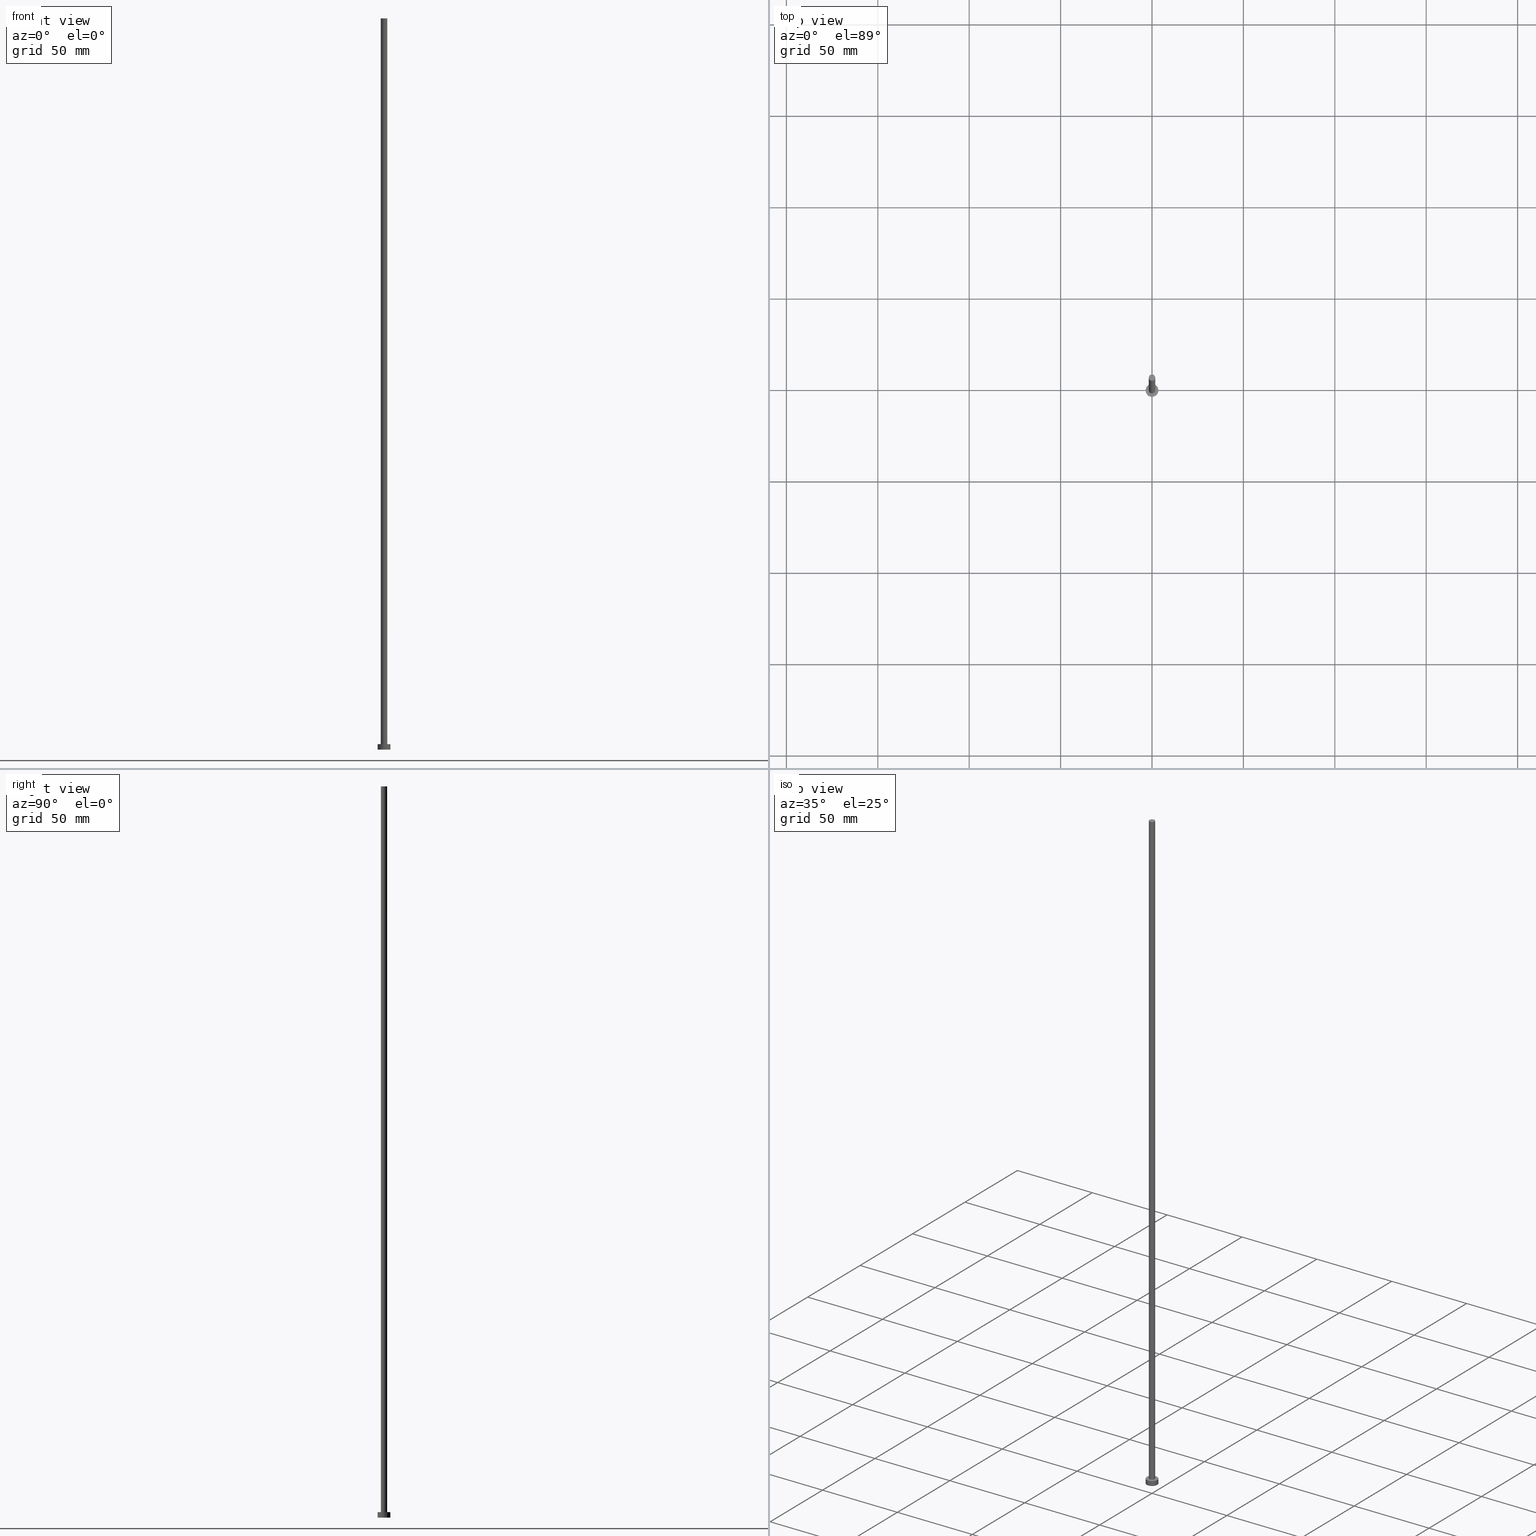
[diagram: canonical four-view strip — front | top / right | iso, engineering-drawing reading convention]
A machine part, canonical four-view strip (front | top / right | iso — engineering-drawing reading convention). The complete STEP part file that produces these views, byte-faithful:
ISO-10303-21;
HEADER;
FILE_DESCRIPTION (( 'STEP AP203' ),
    '1' );
FILE_NAME ('dde2.STEP',
    '2023-02-13T16:22:52',
    ( '' ),
    ( '' ),
    'SwSTEP 2.0',
    'SolidWorks 2019',
    '' );
FILE_SCHEMA (( 'CONFIG_CONTROL_DESIGN' ));
ENDSEC;

DATA;
#1 = DATE_AND_TIME ( #176, #214 ) ;
#2 = CC_DESIGN_PERSON_AND_ORGANIZATION_ASSIGNMENT ( #243, #244, ( #119 ) ) ;
#3 = ADVANCED_FACE ( 'NONE', ( #35, #211 ), #49, .T. ) ;
#4 = DIRECTION ( 'NONE',  ( 1.000000000000000000, 0.000000000000000000, 0.000000000000000000 ) ) ;
#5 = CARTESIAN_POINT ( 'NONE',  ( 0.000000000000000000, 0.000000000000000000, 0.000000000000000000 ) ) ;
#6 = DIRECTION ( 'NONE',  ( 0.000000000000000000, 0.000000000000000000, 1.000000000000000000 ) ) ;
#7 = CIRCLE ( 'NONE', #217, 1.750000000000000000 ) ;
#8 = APPROVAL_DATE_TIME ( #62, #29 ) ;
#9 = EDGE_LOOP ( 'NONE', ( #204, #183 ) ) ;
#10 = PERSON_AND_ORGANIZATION_ROLE ( 'classification_officer' ) ;
#11 = VERTEX_POINT ( 'NONE', #88 ) ;
#12 = ORIENTED_EDGE ( 'NONE', *, *, #55, .T. ) ;
#13 = ORIENTED_EDGE ( 'NONE', *, *, #55, .F. ) ;
#14 = ADVANCED_FACE ( 'NONE', ( #206 ), #233, .T. ) ;
#15 = DIRECTION ( 'NONE',  ( -1.000000000000000000, 0.000000000000000000, 0.000000000000000000 ) ) ;
#16 = CYLINDRICAL_SURFACE ( 'NONE', #75, 1.750000000000000000 ) ;
#17 = DIRECTION ( 'NONE',  ( 1.000000000000000000, 0.000000000000000000, 0.000000000000000000 ) ) ;
#18 = DIRECTION ( 'NONE',  ( 1.000000000000000000, 0.000000000000000000, 0.000000000000000000 ) ) ;
#19 = AXIS2_PLACEMENT_3D ( 'NONE', #228, #74, #91 ) ;
#20 = ADVANCED_FACE ( 'NONE', ( #248 ), #16, .T. ) ;
#21 = COORDINATED_UNIVERSAL_TIME_OFFSET ( 1, 0, .AHEAD. ) ;
#22 =( NAMED_UNIT ( * ) PLANE_ANGLE_UNIT ( ) SI_UNIT ( $, .RADIAN. ) );
#23 = COORDINATED_UNIVERSAL_TIME_OFFSET ( 1, 0, .AHEAD. ) ;
#24 = PERSON_AND_ORGANIZATION_ROLE ( 'creator' ) ;
#25 = VERTEX_POINT ( 'NONE', #251 ) ;
#26 = EDGE_CURVE ( 'NONE', #83, #28, #7, .T. ) ;
#27 = PERSON_AND_ORGANIZATION ( #90, #250 ) ;
#28 = VERTEX_POINT ( 'NONE', #229 ) ;
#29 = APPROVAL ( #221, 'NEUR�EN�' ) ;
#30 = EDGE_LOOP ( 'NONE', ( #220, #12, #123, #182 ) ) ;
#31 = LINE ( 'NONE', #152, #70 ) ;
#32 = AXIS2_PLACEMENT_3D ( 'NONE', #114, #226, #131 ) ;
#33 = CARTESIAN_POINT ( 'NONE',  ( 0.000000000000000000, 0.000000000000000000, 400.0000000000000000 ) ) ;
#34 = DIRECTION ( 'NONE',  ( 1.000000000000000000, 0.000000000000000000, 0.000000000000000000 ) ) ;
#35 = FACE_BOUND ( 'NONE', #48, .T. ) ;
#36 = LINE ( 'NONE', #50, #180 ) ;
#37 = ADVANCED_FACE ( 'NONE', ( #128 ), #53, .T. ) ;
#38 = LOCAL_TIME ( 17, 22, 52.00000000000000000, #179 ) ;
#39 = CARTESIAN_POINT ( 'NONE',  ( -3.500000000000000000, 0.000000000000000000, 0.000000000000000000 ) ) ;
#40 = CARTESIAN_POINT ( 'NONE',  ( 0.000000000000000000, 0.000000000000000000, 400.0000000000000000 ) ) ;
#41 = DIRECTION ( 'NONE',  ( 1.000000000000000000, 0.000000000000000000, -0.000000000000000000 ) ) ;
#42 = SECURITY_CLASSIFICATION_LEVEL ( 'unclassified' ) ;
#43 = CC_DESIGN_PERSON_AND_ORGANIZATION_ASSIGNMENT ( #136, #216, ( #98 ) ) ;
#44 = ORIENTED_EDGE ( 'NONE', *, *, #26, .T. ) ;
#45 = CIRCLE ( 'NONE', #177, 3.500000000000000000 ) ;
#46 = EDGE_LOOP ( 'NONE', ( #245, #106, #165, #253 ) ) ;
#47 = AXIS2_PLACEMENT_3D ( 'NONE', #241, #178, #4 ) ;
#48 = EDGE_LOOP ( 'NONE', ( #186, #163 ) ) ;
#49 = PLANE ( 'NONE',  #32 ) ;
#50 = CARTESIAN_POINT ( 'NONE',  ( -3.500000000000000000, 0.000000000000000000, 3.000000000000000000 ) ) ;
#51 = DIRECTION ( 'NONE',  ( 0.000000000000000000, 0.000000000000000000, 1.000000000000000000 ) ) ;
#52 = LINE ( 'NONE', #205, #96 ) ;
#53 = CYLINDRICAL_SURFACE ( 'NONE', #107, 3.500000000000000000 ) ;
#54 = CIRCLE ( 'NONE', #86, 1.750000000000000000 ) ;
#55 = EDGE_CURVE ( 'NONE', #28, #66, #31, .T. ) ;
#56 = CARTESIAN_POINT ( 'NONE',  ( 0.000000000000000000, 0.000000000000000000, 400.0000000000000000 ) ) ;
#57 = AXIS2_PLACEMENT_3D ( 'NONE', #79, #92, #61 ) ;
#58 = DIRECTION ( 'NONE',  ( -1.000000000000000000, 0.000000000000000000, 0.000000000000000000 ) ) ;
#59 = COORDINATED_UNIVERSAL_TIME_OFFSET ( 1, 0, .AHEAD. ) ;
#60 = EDGE_CURVE ( 'NONE', #25, #246, #36, .T. ) ;
#61 = DIRECTION ( 'NONE',  ( 1.000000000000000000, 0.000000000000000000, 0.000000000000000000 ) ) ;
#62 = DATE_AND_TIME ( #167, #148 ) ;
#63 = ORIENTED_EDGE ( 'NONE', *, *, #26, .F. ) ;
#64 = AXIS2_PLACEMENT_3D ( 'NONE', #76, #156, #231 ) ;
#65 = APPROVAL ( #159, 'NEUR�EN�' ) ;
#66 = VERTEX_POINT ( 'NONE', #249 ) ;
#67 = LOCAL_TIME ( 17, 22, 52.00000000000000000, #59 ) ;
#68 = CALENDAR_DATE ( 2023, 13, 2 ) ;
#69 = ORIENTED_EDGE ( 'NONE', *, *, #126, .F. ) ;
#70 = VECTOR ( 'NONE', #130, 1000.000000000000000 ) ;
#71 = CARTESIAN_POINT ( 'NONE',  ( 0.000000000000000000, 0.000000000000000000, 3.000000000000000000 ) ) ;
#72 = PRODUCT_RELATED_PRODUCT_CATEGORY ( 'detail', '', ( #98 ) ) ;
#73 = DIRECTION ( 'NONE',  ( 0.000000000000000000, 0.000000000000000000, 1.000000000000000000 ) ) ;
#74 = DIRECTION ( 'NONE',  ( -0.000000000000000000, -0.000000000000000000, -1.000000000000000000 ) ) ;
#75 = AXIS2_PLACEMENT_3D ( 'NONE', #173, #77, #15 ) ;
#76 = CARTESIAN_POINT ( 'NONE',  ( 0.000000000000000000, 0.000000000000000000, 0.000000000000000000 ) ) ;
#77 = DIRECTION ( 'NONE',  ( -0.000000000000000000, -0.000000000000000000, -1.000000000000000000 ) ) ;
#78 = PERSON_AND_ORGANIZATION ( #90, #250 ) ;
#79 = CARTESIAN_POINT ( 'NONE',  ( 0.000000000000000000, 0.000000000000000000, 3.000000000000000000 ) ) ;
#80 = CIRCLE ( 'NONE', #57, 3.500000000000000000 ) ;
#81 = EDGE_CURVE ( 'NONE', #166, #11, #52, .T. ) ;
#82 = EDGE_CURVE ( 'NONE', #144, #66, #145, .T. ) ;
#83 = VERTEX_POINT ( 'NONE', #168 ) ;
#84 = EDGE_LOOP ( 'NONE', ( #44, #202 ) ) ;
#85 = CARTESIAN_POINT ( 'NONE',  ( 0.000000000000000000, 0.000000000000000000, 3.000000000000000000 ) ) ;
#86 = AXIS2_PLACEMENT_3D ( 'NONE', #170, #73, #172 ) ;
#87 = DIRECTION ( 'NONE',  ( -0.000000000000000000, -0.000000000000000000, -1.000000000000000000 ) ) ;
#88 = CARTESIAN_POINT ( 'NONE',  ( 3.500000000000000000, 4.286263797015736595E-16, 0.000000000000000000 ) ) ;
#89 = CARTESIAN_POINT ( 'NONE',  ( -1.750000000000000000, 0.000000000000000000, 400.0000000000000000 ) ) ;
#90 = PERSON ( 'NEUR�EN�', 'NEUR�EN�', 'NEUR�EN�', ('NEUR�EN�'), ('NEUR�EN�'), ('NEUR�EN�') ) ;
#91 = DIRECTION ( 'NONE',  ( -1.000000000000000000, 0.000000000000000000, 0.000000000000000000 ) ) ;
#92 = DIRECTION ( 'NONE',  ( 0.000000000000000000, 0.000000000000000000, 1.000000000000000000 ) ) ;
#93 = APPROVAL ( #99, 'NEUR�EN�' ) ;
#94 = AXIS2_PLACEMENT_3D ( 'NONE', #5, #6, #255 ) ;
#95 = PERSON_AND_ORGANIZATION ( #90, #250 ) ;
#96 = VECTOR ( 'NONE', #171, 1000.000000000000000 ) ;
#97 = DIRECTION ( 'NONE',  ( 1.000000000000000000, 0.000000000000000000, 0.000000000000000000 ) ) ;
#98 = PRODUCT ( 'dde2', 'dde2', '', ( #237 ) ) ;
#99 = APPROVAL_STATUS ( 'not_yet_approved' ) ;
#100 = CARTESIAN_POINT ( 'NONE',  ( 0.000000000000000000, 0.000000000000000000, 400.0000000000000000 ) ) ;
#101 = EDGE_CURVE ( 'NONE', #11, #246, #212, .T. ) ;
#102 = AXIS2_PLACEMENT_3D ( 'NONE', #187, #185, #17 ) ;
#103 = SHAPE_DEFINITION_REPRESENTATION ( #194, #201 ) ;
#104 = ORIENTED_EDGE ( 'NONE', *, *, #126, .T. ) ;
#105 = COORDINATED_UNIVERSAL_TIME_OFFSET ( 1, 0, .AHEAD. ) ;
#106 = ORIENTED_EDGE ( 'NONE', *, *, #254, .F. ) ;
#107 = AXIS2_PLACEMENT_3D ( 'NONE', #71, #115, #135 ) ;
#108 = EDGE_LOOP ( 'NONE', ( #69, #222, #127, #147 ) ) ;
#109 = DIRECTION ( 'NONE',  ( 1.000000000000000000, 0.000000000000000000, 0.000000000000000000 ) ) ;
#110 = LINE ( 'NONE', #89, #169 ) ;
#111 = APPLICATION_CONTEXT ( 'configuration controlled 3d designs of mechanical parts and assemblies' ) ;
#112 = CC_DESIGN_APPROVAL ( #29, ( #153 ) ) ;
#113 = ORIENTED_EDGE ( 'NONE', *, *, #82, .T. ) ;
#114 = CARTESIAN_POINT ( 'NONE',  ( 0.000000000000000000, 0.000000000000000000, 3.000000000000000000 ) ) ;
#115 = DIRECTION ( 'NONE',  ( -0.000000000000000000, -0.000000000000000000, -1.000000000000000000 ) ) ;
#116 =( GEOMETRIC_REPRESENTATION_CONTEXT ( 3 ) GLOBAL_UNCERTAINTY_ASSIGNED_CONTEXT ( ( #188 ) ) GLOBAL_UNIT_ASSIGNED_CONTEXT ( ( #193, #22, #118 ) ) REPRESENTATION_CONTEXT ( 'NONE', 'WORKASPACE' ) );
#117 = CIRCLE ( 'NONE', #236, 1.750000000000000000 ) ;
#118 =( NAMED_UNIT ( * ) SI_UNIT ( $, .STERADIAN. ) SOLID_ANGLE_UNIT ( ) );
#119 = PRODUCT_DEFINITION_FORMATION_WITH_SPECIFIED_SOURCE ( 'LIBOVOLN�', '', #98, .NOT_KNOWN. ) ;
#120 = FACE_OUTER_BOUND ( 'NONE', #84, .T. ) ;
#121 = DATE_AND_TIME ( #162, #138 ) ;
#122 = AXIS2_PLACEMENT_3D ( 'NONE', #40, #158, #58 ) ;
#123 = ORIENTED_EDGE ( 'NONE', *, *, #129, .T. ) ;
#124 = EDGE_CURVE ( 'NONE', #83, #144, #110, .T. ) ;
#125 = AXIS2_PLACEMENT_3D ( 'NONE', #100, #174, #41 ) ;
#126 = EDGE_CURVE ( 'NONE', #166, #25, #45, .T. ) ;
#127 = ORIENTED_EDGE ( 'NONE', *, *, #101, .T. ) ;
#128 = FACE_OUTER_BOUND ( 'NONE', #46, .T. ) ;
#129 = EDGE_CURVE ( 'NONE', #66, #144, #54, .T. ) ;
#130 = DIRECTION ( 'NONE',  ( -0.000000000000000000, -0.000000000000000000, -1.000000000000000000 ) ) ;
#131 = DIRECTION ( 'NONE',  ( 1.000000000000000000, 0.000000000000000000, -0.000000000000000000 ) ) ;
#132 = CC_DESIGN_SECURITY_CLASSIFICATION ( #153, ( #119 ) ) ;
#133 = CARTESIAN_POINT ( 'NONE',  ( -1.750000000000000000, 0.000000000000000000, 3.000000000000000000 ) ) ;
#134 = ADVANCED_FACE ( 'NONE', ( #154 ), #252, .F. ) ;
#135 = DIRECTION ( 'NONE',  ( -1.000000000000000000, 0.000000000000000000, 0.000000000000000000 ) ) ;
#136 = PERSON_AND_ORGANIZATION ( #90, #250 ) ;
#137 = APPROVAL_DATE_TIME ( #213, #93 ) ;
#138 = LOCAL_TIME ( 17, 22, 52.00000000000000000, #105 ) ;
#139 = DIRECTION ( 'NONE',  ( 0.000000000000000000, 0.000000000000000000, 1.000000000000000000 ) ) ;
#140 = APPLICATION_PROTOCOL_DEFINITION ( 'international standard', 'config_control_design', 1994, #227 ) ;
#141 = CC_DESIGN_APPROVAL ( #65, ( #119 ) ) ;
#142 = CC_DESIGN_DATE_AND_TIME_ASSIGNMENT ( #1, #239, ( #143 ) ) ;
#143 = PRODUCT_DEFINITION ( 'NEZN�M�', '', #119, #240 ) ;
#144 = VERTEX_POINT ( 'NONE', #133 ) ;
#145 = CIRCLE ( 'NONE', #247, 1.750000000000000000 ) ;
#146 = EDGE_LOOP ( 'NONE', ( #150, #104 ) ) ;
#147 = ORIENTED_EDGE ( 'NONE', *, *, #60, .F. ) ;
#148 = LOCAL_TIME ( 17, 22, 52.00000000000000000, #23 ) ;
#149 = APPROVAL_DATE_TIME ( #151, #65 ) ;
#150 = ORIENTED_EDGE ( 'NONE', *, *, #254, .T. ) ;
#151 = DATE_AND_TIME ( #68, #67 ) ;
#152 = CARTESIAN_POINT ( 'NONE',  ( 1.750000000000000000, 2.143131898507868297E-16, 400.0000000000000000 ) ) ;
#153 = SECURITY_CLASSIFICATION ( '', '', #42 ) ;
#154 = FACE_OUTER_BOUND ( 'NONE', #9, .T. ) ;
#155 = DIRECTION ( 'NONE',  ( 0.000000000000000000, 0.000000000000000000, 1.000000000000000000 ) ) ;
#156 = DIRECTION ( 'NONE',  ( 0.000000000000000000, 0.000000000000000000, 1.000000000000000000 ) ) ;
#157 = EDGE_LOOP ( 'NONE', ( #13, #63, #224, #113 ) ) ;
#158 = DIRECTION ( 'NONE',  ( -0.000000000000000000, -0.000000000000000000, -1.000000000000000000 ) ) ;
#159 = APPROVAL_STATUS ( 'not_yet_approved' ) ;
#160 = APPLICATION_PROTOCOL_DEFINITION ( 'international standard', 'config_control_design', 1994, #111 ) ;
#161 = PERSON_AND_ORGANIZATION ( #90, #250 ) ;
#162 = CALENDAR_DATE ( 2023, 13, 2 ) ;
#163 = ORIENTED_EDGE ( 'NONE', *, *, #129, .F. ) ;
#164 = CC_DESIGN_PERSON_AND_ORGANIZATION_ASSIGNMENT ( #223, #10, ( #153 ) ) ;
#165 = ORIENTED_EDGE ( 'NONE', *, *, #60, .T. ) ;
#166 = VERTEX_POINT ( 'NONE', #209 ) ;
#167 = CALENDAR_DATE ( 2023, 13, 2 ) ;
#168 = CARTESIAN_POINT ( 'NONE',  ( -1.750000000000000000, 0.000000000000000000, 400.0000000000000000 ) ) ;
#169 = VECTOR ( 'NONE', #87, 1000.000000000000000 ) ;
#170 = CARTESIAN_POINT ( 'NONE',  ( 0.000000000000000000, 0.000000000000000000, 3.000000000000000000 ) ) ;
#171 = DIRECTION ( 'NONE',  ( -0.000000000000000000, -0.000000000000000000, -1.000000000000000000 ) ) ;
#172 = DIRECTION ( 'NONE',  ( 1.000000000000000000, 0.000000000000000000, 0.000000000000000000 ) ) ;
#173 = CARTESIAN_POINT ( 'NONE',  ( 0.000000000000000000, 0.000000000000000000, 400.0000000000000000 ) ) ;
#174 = DIRECTION ( 'NONE',  ( 0.000000000000000000, 0.000000000000000000, 1.000000000000000000 ) ) ;
#175 = ADVANCED_FACE ( 'NONE', ( #218 ), #234, .T. ) ;
#176 = CALENDAR_DATE ( 2023, 13, 2 ) ;
#177 = AXIS2_PLACEMENT_3D ( 'NONE', #189, #155, #18 ) ;
#178 = DIRECTION ( 'NONE',  ( 0.000000000000000000, 0.000000000000000000, 1.000000000000000000 ) ) ;
#179 = COORDINATED_UNIVERSAL_TIME_OFFSET ( 1, 0, .AHEAD. ) ;
#180 = VECTOR ( 'NONE', #190, 1000.000000000000000 ) ;
#181 = DATE_TIME_ROLE ( 'classification_date' ) ;
#182 = ORIENTED_EDGE ( 'NONE', *, *, #124, .F. ) ;
#183 = ORIENTED_EDGE ( 'NONE', *, *, #101, .F. ) ;
#184 = APPROVAL_PERSON_ORGANIZATION ( #95, #93, #196 ) ;
#185 = DIRECTION ( 'NONE',  ( 0.000000000000000000, 0.000000000000000000, 1.000000000000000000 ) ) ;
#186 = ORIENTED_EDGE ( 'NONE', *, *, #82, .F. ) ;
#187 = CARTESIAN_POINT ( 'NONE',  ( 0.000000000000000000, 0.000000000000000000, 0.000000000000000000 ) ) ;
#188 = UNCERTAINTY_MEASURE_WITH_UNIT (LENGTH_MEASURE( 1.000000000000000082E-05 ), #193, 'distance_accuracy_value', 'NONE');
#189 = CARTESIAN_POINT ( 'NONE',  ( 0.000000000000000000, 0.000000000000000000, 3.000000000000000000 ) ) ;
#190 = DIRECTION ( 'NONE',  ( -0.000000000000000000, -0.000000000000000000, -1.000000000000000000 ) ) ;
#191 = PERSON_AND_ORGANIZATION_ROLE ( 'creator' ) ;
#192 = MANIFOLD_SOLID_BREP ( 'P�idat vysunut�m3', #197 ) ;
#193 =( LENGTH_UNIT ( ) NAMED_UNIT ( * ) SI_UNIT ( .MILLI., .METRE. ) );
#194 = PRODUCT_DEFINITION_SHAPE ( 'NONE', 'NONE',  #143 ) ;
#195 = ADVANCED_FACE ( 'NONE', ( #120 ), #215, .T. ) ;
#196 = APPROVAL_ROLE ( '' ) ;
#197 = CLOSED_SHELL ( 'NONE', ( #20, #14, #37, #3, #134, #175, #195 ) ) ;
#198 = APPROVAL_ROLE ( '' ) ;
#199 = PERSON_AND_ORGANIZATION ( #90, #250 ) ;
#200 = CC_DESIGN_APPROVAL ( #93, ( #143 ) ) ;
#201 = ADVANCED_BREP_SHAPE_REPRESENTATION ( 'dde2', ( #192, #47 ), #116 ) ;
#202 = ORIENTED_EDGE ( 'NONE', *, *, #225, .T. ) ;
#203 = EDGE_CURVE ( 'NONE', #246, #11, #232, .T. ) ;
#204 = ORIENTED_EDGE ( 'NONE', *, *, #203, .F. ) ;
#205 = CARTESIAN_POINT ( 'NONE',  ( 3.500000000000000000, 4.286263797015736595E-16, 3.000000000000000000 ) ) ;
#206 = FACE_OUTER_BOUND ( 'NONE', #108, .T. ) ;
#207 = DIRECTION ( 'NONE',  ( 0.000000000000000000, 0.000000000000000000, 1.000000000000000000 ) ) ;
#208 = APPROVAL_PERSON_ORGANIZATION ( #27, #29, #198 ) ;
#209 = CARTESIAN_POINT ( 'NONE',  ( 3.500000000000000000, 4.286263797015736595E-16, 3.000000000000000000 ) ) ;
#210 = CC_DESIGN_PERSON_AND_ORGANIZATION_ASSIGNMENT ( #161, #191, ( #143 ) ) ;
#211 = FACE_OUTER_BOUND ( 'NONE', #146, .T. ) ;
#212 = CIRCLE ( 'NONE', #102, 3.500000000000000000 ) ;
#213 = DATE_AND_TIME ( #219, #38 ) ;
#214 = LOCAL_TIME ( 17, 22, 52.00000000000000000, #21 ) ;
#215 = PLANE ( 'NONE',  #125 ) ;
#216 = PERSON_AND_ORGANIZATION_ROLE ( 'design_owner' ) ;
#217 = AXIS2_PLACEMENT_3D ( 'NONE', #33, #207, #34 ) ;
#218 = FACE_OUTER_BOUND ( 'NONE', #157, .T. ) ;
#219 = CALENDAR_DATE ( 2023, 13, 2 ) ;
#220 = ORIENTED_EDGE ( 'NONE', *, *, #225, .F. ) ;
#221 = APPROVAL_STATUS ( 'not_yet_approved' ) ;
#222 = ORIENTED_EDGE ( 'NONE', *, *, #81, .T. ) ;
#223 = PERSON_AND_ORGANIZATION ( #90, #250 ) ;
#224 = ORIENTED_EDGE ( 'NONE', *, *, #124, .T. ) ;
#225 = EDGE_CURVE ( 'NONE', #28, #83, #117, .T. ) ;
#226 = DIRECTION ( 'NONE',  ( 0.000000000000000000, 0.000000000000000000, 1.000000000000000000 ) ) ;
#227 = APPLICATION_CONTEXT ( 'configuration controlled 3d designs of mechanical parts and assemblies' ) ;
#228 = CARTESIAN_POINT ( 'NONE',  ( 0.000000000000000000, 0.000000000000000000, 3.000000000000000000 ) ) ;
#229 = CARTESIAN_POINT ( 'NONE',  ( 1.750000000000000000, 2.143131898507868297E-16, 400.0000000000000000 ) ) ;
#230 = CC_DESIGN_PERSON_AND_ORGANIZATION_ASSIGNMENT ( #199, #24, ( #119 ) ) ;
#231 = DIRECTION ( 'NONE',  ( 1.000000000000000000, 0.000000000000000000, -0.000000000000000000 ) ) ;
#232 = CIRCLE ( 'NONE', #94, 3.500000000000000000 ) ;
#233 = CYLINDRICAL_SURFACE ( 'NONE', #19, 3.500000000000000000 ) ;
#234 = CYLINDRICAL_SURFACE ( 'NONE', #122, 1.750000000000000000 ) ;
#235 = APPROVAL_ROLE ( '' ) ;
#236 = AXIS2_PLACEMENT_3D ( 'NONE', #56, #139, #97 ) ;
#237 = MECHANICAL_CONTEXT ( 'NONE', #111, 'mechanical' ) ;
#238 = CC_DESIGN_DATE_AND_TIME_ASSIGNMENT ( #121, #181, ( #153 ) ) ;
#239 = DATE_TIME_ROLE ( 'creation_date' ) ;
#240 = DESIGN_CONTEXT ( 'detailed design', #227, 'design' ) ;
#241 = CARTESIAN_POINT ( 'NONE',  ( 0.000000000000000000, 0.000000000000000000, 0.000000000000000000 ) ) ;
#242 = APPROVAL_PERSON_ORGANIZATION ( #78, #65, #235 ) ;
#243 = PERSON_AND_ORGANIZATION ( #90, #250 ) ;
#244 = PERSON_AND_ORGANIZATION_ROLE ( 'design_supplier' ) ;
#245 = ORIENTED_EDGE ( 'NONE', *, *, #81, .F. ) ;
#246 = VERTEX_POINT ( 'NONE', #39 ) ;
#247 = AXIS2_PLACEMENT_3D ( 'NONE', #85, #51, #109 ) ;
#248 = FACE_OUTER_BOUND ( 'NONE', #30, .T. ) ;
#249 = CARTESIAN_POINT ( 'NONE',  ( 1.750000000000000000, 2.143131898507868297E-16, 3.000000000000000000 ) ) ;
#250 = ORGANIZATION ( 'NEUR�EN�', 'NEUR�EN�', '' ) ;
#251 = CARTESIAN_POINT ( 'NONE',  ( -3.500000000000000000, 0.000000000000000000, 3.000000000000000000 ) ) ;
#252 = PLANE ( 'NONE',  #64 ) ;
#253 = ORIENTED_EDGE ( 'NONE', *, *, #203, .T. ) ;
#254 = EDGE_CURVE ( 'NONE', #25, #166, #80, .T. ) ;
#255 = DIRECTION ( 'NONE',  ( 1.000000000000000000, 0.000000000000000000, 0.000000000000000000 ) ) ;
ENDSEC;
END-ISO-10303-21;
